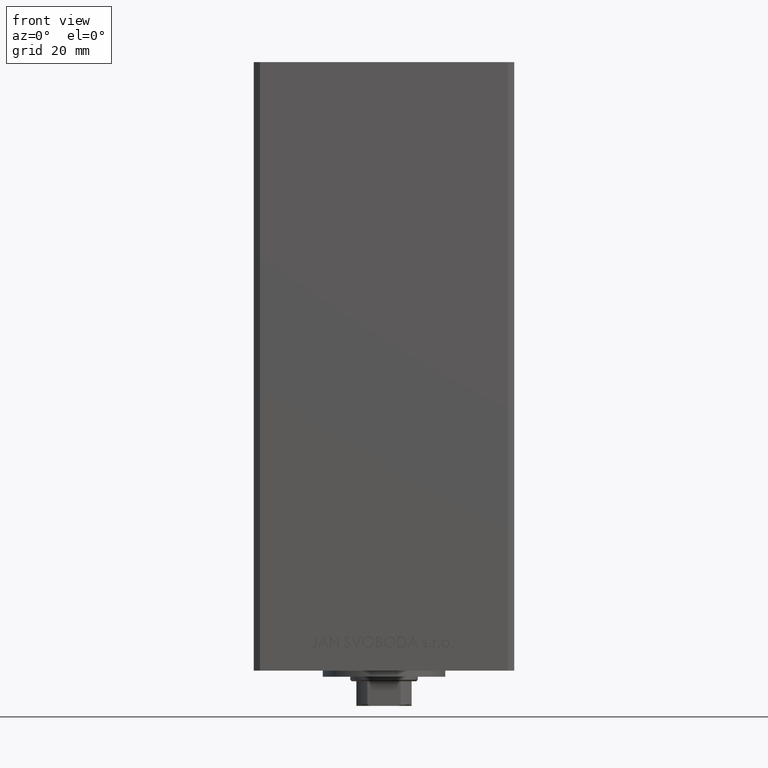
[diagram: clean part render]
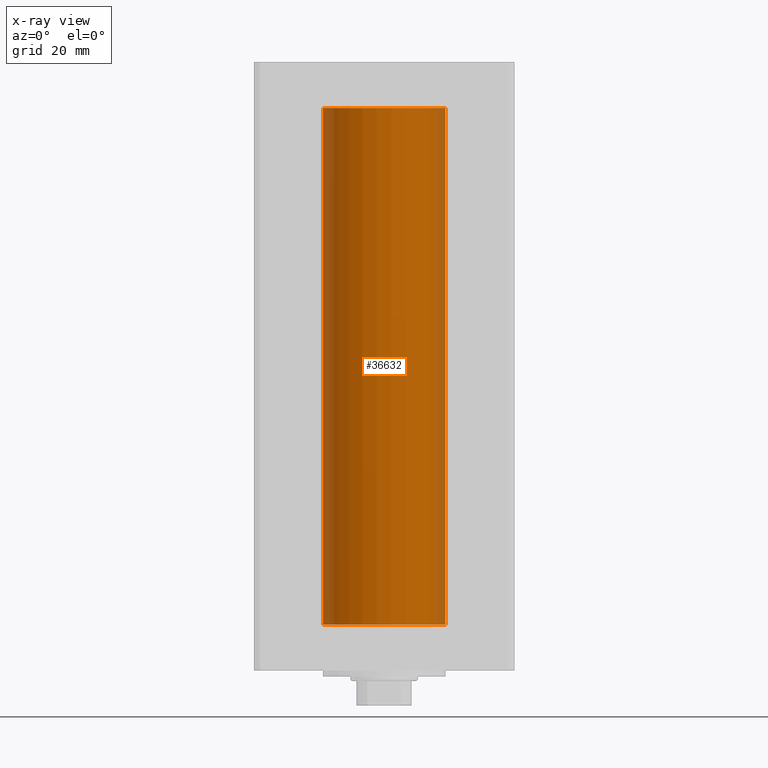
[diagram: x-ray — body ghosted, one internal face saturated and labeled with its STEP entity id]
A machine part, front view, then the same camera in x-ray: the body is ghosted and one INTERNAL B-rep face — a face not visible from any outside direction — is saturated and labeled: STEP entity #36632.
In plain terms, the highlighted cylindrical surface (partial cylindrical patch) has radius 20 mm, axis along (-0, -0, -1).
Its self-contained STEP definition (entity closure, byte-faithful):
#1533 = VECTOR ( 'NONE', #39751, 1000.000000000000000 ) ;
#1887 = CARTESIAN_POINT ( 'NONE',  ( -20.00000000000000000, 0.000000000000000000, 168.5000000000000000 ) ) ;
#3040 = ORIENTED_EDGE ( 'NONE', *, *, #3772, .F. ) ;
#3772 = EDGE_CURVE ( 'NONE', #38368, #32573, #24372, .T. ) ;
#4777 = CARTESIAN_POINT ( 'NONE',  ( 0.000000000000000000, 0.000000000000000000, 168.5000000000000000 ) ) ;
#5255 = DIRECTION ( 'NONE',  ( -1.000000000000000000, 0.000000000000000000, 0.000000000000000000 ) ) ;
#5786 = DIRECTION ( 'NONE',  ( 1.000000000000000000, 0.000000000000000000, 0.000000000000000000 ) ) ;
#6036 = DIRECTION ( 'NONE',  ( -0.000000000000000000, 0.000000000000000000, 1.000000000000000000 ) ) ;
#6593 = LINE ( 'NONE', #1887, #1533 ) ;
#7041 = AXIS2_PLACEMENT_3D ( 'NONE', #47578, #36116, #20447 ) ;
#9006 = CYLINDRICAL_SURFACE ( 'NONE', #20678, 20.00000000000000000 ) ;
#11542 = CARTESIAN_POINT ( 'NONE',  ( -20.00000000000000000, 0.000000000000000000, 0.000000000000000000 ) ) ;
#12461 = AXIS2_PLACEMENT_3D ( 'NONE', #46901, #6036, #5786 ) ;
#17840 = CARTESIAN_POINT ( 'NONE',  ( 20.00000000000000000, 2.449293598294706513E-15, 168.5000000000000000 ) ) ;
#18348 = VECTOR ( 'NONE', #38024, 1000.000000000000000 ) ;
#20067 = EDGE_LOOP ( 'NONE', ( #32626, #25296, #3040, #31151 ) ) ;
#20447 = DIRECTION ( 'NONE',  ( 1.000000000000000000, 0.000000000000000000, 0.000000000000000000 ) ) ;
#20678 = AXIS2_PLACEMENT_3D ( 'NONE', #4777, #36127, #5255 ) ;
#21211 = CARTESIAN_POINT ( 'NONE',  ( 20.00000000000000000, 2.449293598294706513E-15, 0.000000000000000000 ) ) ;
#21881 = EDGE_CURVE ( 'NONE', #25291, #34034, #28520, .T. ) ;
#24372 = CIRCLE ( 'NONE', #12461, 20.00000000000000000 ) ;
#25291 = VERTEX_POINT ( 'NONE', #31810 ) ;
#25296 = ORIENTED_EDGE ( 'NONE', *, *, #30149, .T. ) ;
#26794 = EDGE_CURVE ( 'NONE', #25291, #38368, #6593, .T. ) ;
#28520 = CIRCLE ( 'NONE', #7041, 20.00000000000000000 ) ;
#30149 = EDGE_CURVE ( 'NONE', #34034, #32573, #36785, .T. ) ;
#31151 = ORIENTED_EDGE ( 'NONE', *, *, #26794, .F. ) ;
#31810 = CARTESIAN_POINT ( 'NONE',  ( -20.00000000000000000, 0.000000000000000000, 168.5000000000000000 ) ) ;
#32573 = VERTEX_POINT ( 'NONE', #21211 ) ;
#32626 = ORIENTED_EDGE ( 'NONE', *, *, #21881, .T. ) ;
#34034 = VERTEX_POINT ( 'NONE', #35551 ) ;
#35551 = CARTESIAN_POINT ( 'NONE',  ( 20.00000000000000000, 2.449293598294706513E-15, 168.5000000000000000 ) ) ;
#36116 = DIRECTION ( 'NONE',  ( -0.000000000000000000, 0.000000000000000000, 1.000000000000000000 ) ) ;
#36127 = DIRECTION ( 'NONE',  ( -0.000000000000000000, -0.000000000000000000, -1.000000000000000000 ) ) ;
#36632 = ADVANCED_FACE ( 'NONE', ( #47346 ), #9006, .F. ) ;
#36785 = LINE ( 'NONE', #17840, #18348 ) ;
#38024 = DIRECTION ( 'NONE',  ( -0.000000000000000000, -0.000000000000000000, -1.000000000000000000 ) ) ;
#38368 = VERTEX_POINT ( 'NONE', #11542 ) ;
#39751 = DIRECTION ( 'NONE',  ( -0.000000000000000000, -0.000000000000000000, -1.000000000000000000 ) ) ;
#46901 = CARTESIAN_POINT ( 'NONE',  ( 0.000000000000000000, 0.000000000000000000, 0.000000000000000000 ) ) ;
#47346 = FACE_OUTER_BOUND ( 'NONE', #20067, .T. ) ;
#47578 = CARTESIAN_POINT ( 'NONE',  ( 0.000000000000000000, 0.000000000000000000, 168.5000000000000000 ) ) ;